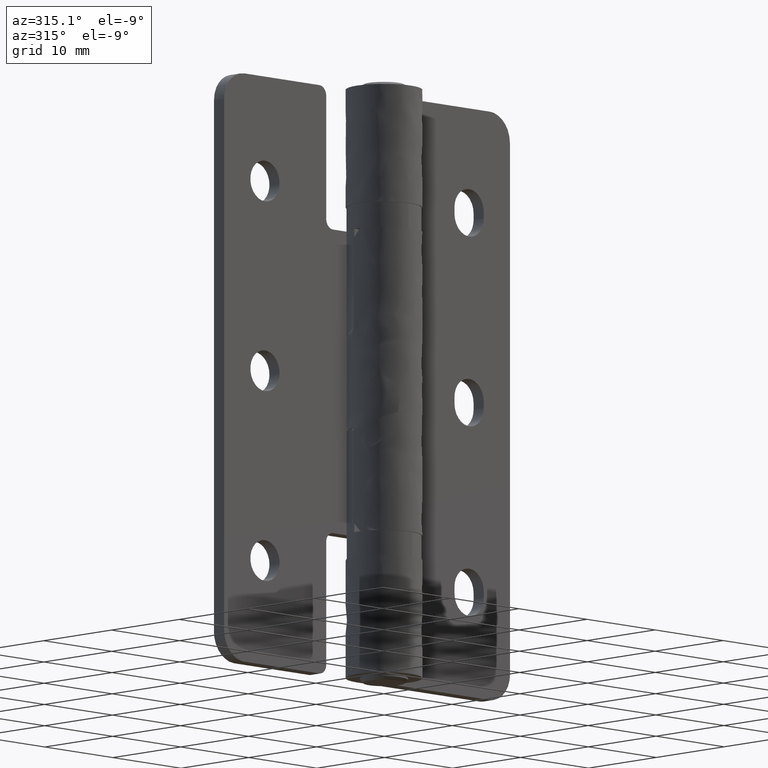
[diagram: clean part render]
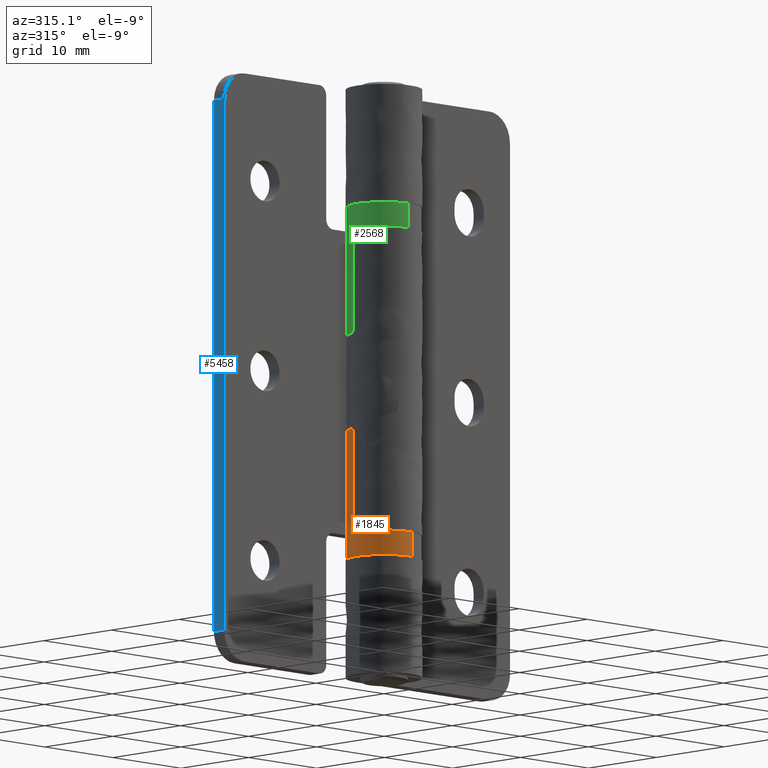
[diagram: same view with three faces highlighted in distinct colors, each labeled with its STEP entity id]
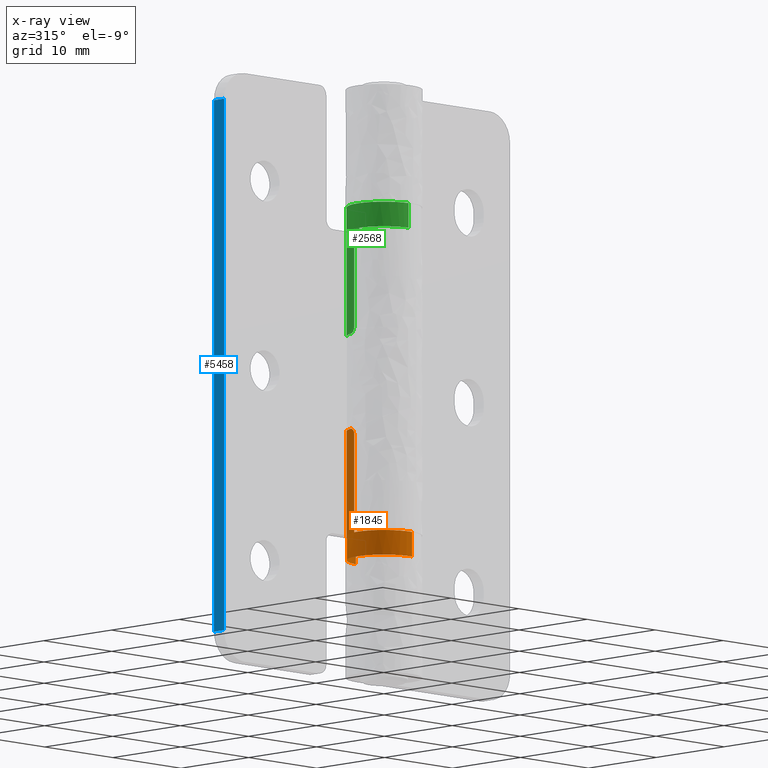
[diagram: x-ray of the same camera — body ghosted, the three highlighted faces saturated]
A machine part, auxiliary view with three faces highlighted in distinct colors.
The next image is the same camera in x-ray (body ghosted, the three faces saturated) — at least one of them is partly hidden behind the body in this view.
Their STEP definitions:

[orange] entity #1845 — the highlighted face is a freeform B-spline surface patch.
#1608=CARTESIAN_POINT('',(0.247033658783090,-3.892168338012674,12.400000000000000));
#1609=VERTEX_POINT('',#1608);
#1623=CARTESIAN_POINT('',(-3.899999999999773,0.0,12.400000000000000));
#1624=VERTEX_POINT('',#1623);
#1625=CARTESIAN_POINT('',(0.247033658783089,-3.892168338012676,12.399999999999999));
#1626=CARTESIAN_POINT('',(0.123640972250947,-3.900000000000000,12.400000000000000));
#1627=CARTESIAN_POINT('',(2.273737E-013,-3.900000000000000,12.400000000000000));
#1628=CARTESIAN_POINT('',(-3.899999999999773,-3.899999999999999,12.400000000000000));
#1629=CARTESIAN_POINT('',(-3.899999999999773,0.0,12.400000000000000));
#1637=(BOUNDED_CURVE()B_SPLINE_CURVE(2,(#1625,#1626,#1627,#1628,#1629),.UNSPECIFIED.,.F.,.U.)B_SPLINE_CURVE_WITH_KNOTS((3,2,3),(0.238936643895539,0.250000000000000,0.500000000000000),.UNSPECIFIED.)CURVE()GEOMETRIC_REPRESENTATION_ITEM()RATIONAL_B_SPLINE_CURVE((0.975224128149886,0.987038472078740,1.0,0.707106781186548,1.0))REPRESENTATION_ITEM(''));
#1638=EDGE_CURVE('',#1609,#1624,#1637,.T.);
#1640=CARTESIAN_POINT('',(-0.247033658779199,3.892168338012893,12.400000000000000));
#1641=VERTEX_POINT('',#1640);
#1642=CARTESIAN_POINT('',(-3.899999999999773,0.0,12.400000000000000));
#1643=CARTESIAN_POINT('',(-3.899999999999772,3.660316690730205,12.400000000000000));
#1644=CARTESIAN_POINT('',(-0.247033658779198,3.892168338012894,12.399999999999995));
#1652=(BOUNDED_CURVE()B_SPLINE_CURVE(2,(#1642,#1643,#1644),.UNSPECIFIED.,.F.,.U.)B_SPLINE_CURVE_WITH_KNOTS((3,3),(0.500000000000000,0.738936643895691),.UNSPECIFIED.)CURVE()GEOMETRIC_REPRESENTATION_ITEM()RATIONAL_B_SPLINE_CURVE((1.0,0.720068309107630,0.975224128150211))REPRESENTATION_ITEM(''));
#1653=EDGE_CURVE('',#1624,#1641,#1652,.T.);
#1697=CARTESIAN_POINT('',(-0.247031587118429,3.892168469498889,14.999999999999931));
#1698=VERTEX_POINT('',#1697);
#1699=CARTESIAN_POINT('',(0.247021727832899,-3.892169095226418,15.0));
#1700=VERTEX_POINT('',#1699);
#1718=CARTESIAN_POINT('',(0.247021727832899,-3.892169095226418,15.0));
#1719=CARTESIAN_POINT('',(0.247033658783090,-3.892168338012674,12.400000000000000));
#1720=QUASI_UNIFORM_CURVE('',1,(#1718,#1719),.UNSPECIFIED.,.F.,.U.);
#1721=EDGE_CURVE('',#1700,#1609,#1720,.T.);
#1725=CARTESIAN_POINT('',(-0.247031587118429,3.892168469498889,14.999999999999931));
#1726=CARTESIAN_POINT('',(-0.247033658779199,3.892168338012893,12.400000000000000));
#1727=QUASI_UNIFORM_CURVE('',1,(#1725,#1726),.UNSPECIFIED.,.F.,.U.);
#1728=EDGE_CURVE('',#1698,#1641,#1727,.T.);
#1733=CARTESIAN_POINT('',(0.247033658760848,-3.892168338014085,26.340000000000000));
#1734=CARTESIAN_POINT('',(-3.645134679253237,-4.139201996774706,26.340000000000011));
#1735=CARTESIAN_POINT('',(-3.892168338013858,-0.247033658760621,26.340000000000000));
#1736=CARTESIAN_POINT('',(-4.139201996774479,3.645134679253463,26.340000000000011));
#1737=CARTESIAN_POINT('',(-0.247033658760394,3.892168338014085,26.340000000000000));
#1738=CARTESIAN_POINT('',(0.247033658760848,-3.892168338014085,12.051500000000001));
#1739=CARTESIAN_POINT('',(-3.645134679253237,-4.139201996774706,12.051499999999999));
#1740=CARTESIAN_POINT('',(-3.892168338013858,-0.247033658760621,12.051500000000001));
#1741=CARTESIAN_POINT('',(-4.139201996774479,3.645134679253463,12.051499999999999));
#1742=CARTESIAN_POINT('',(-0.247033658760394,3.892168338014085,12.051500000000001));
#1750=(BOUNDED_SURFACE()B_SPLINE_SURFACE(2,1,((#1733,#1738),(#1734,#1739),(#1735,#1740),(#1736,#1741),(#1737,#1742)),.UNSPECIFIED.,.F.,.F.,.U.)B_SPLINE_SURFACE_WITH_KNOTS((3,2,3),(2,2),(0.0,6.461731573020280,12.923463146040559),(0.0,14.288500000000010),.UNSPECIFIED.)GEOMETRIC_REPRESENTATION_ITEM()RATIONAL_B_SPLINE_SURFACE(((1.0,1.0),(0.707106781186548,0.707106781186548),(1.0,1.0),(0.707106781186548,0.707106781186548),(1.0,1.0)))REPRESENTATION_ITEM('')SURFACE());
#1751=CARTESIAN_POINT('',(-2.993325909418925,2.500000000000000,14.999999999999680));
#1752=VERTEX_POINT('',#1751);
#1753=CARTESIAN_POINT('',(-2.993325909418925,2.500000000000000,14.999999999999680));
#1754=CARTESIAN_POINT('',(-1.919240356368897,3.786035245950685,14.999999999999840));
#1755=CARTESIAN_POINT('',(-0.247031587118429,3.892168469498889,14.999999999999932));
#1763=(BOUNDED_CURVE()B_SPLINE_CURVE(2,(#1753,#1754,#1755),.UNSPECIFIED.,.F.,.U.)B_SPLINE_CURVE_WITH_KNOTS((3,3),(0.0,0.141269849466149),.UNSPECIFIED.)CURVE()GEOMETRIC_REPRESENTATION_ITEM()RATIONAL_B_SPLINE_CURVE((1.0,0.861797565883015,0.879785828274524))REPRESENTATION_ITEM(''));
#1764=EDGE_CURVE('',#1752,#1698,#1763,.T.);
#1765=ORIENTED_EDGE('',*,*,#1764,.T.);
#1766=ORIENTED_EDGE('',*,*,#1728,.T.);
#1767=ORIENTED_EDGE('',*,*,#1653,.F.);
#1768=ORIENTED_EDGE('',*,*,#1638,.F.);
#1769=ORIENTED_EDGE('',*,*,#1721,.F.);
#1770=CARTESIAN_POINT('',(-3.867815921162515,0.500000000000000,14.999999999999680));
#1771=VERTEX_POINT('',#1770);
#1772=CARTESIAN_POINT('',(0.247021727832899,-3.892169095226418,15.0));
#1773=CARTESIAN_POINT('',(-0.408598927172341,-3.933778938746776,14.999999999999984));
#1774=CARTESIAN_POINT('',(-1.041672105368831,-3.758313348402834,14.999999999999950));
#1775=CARTESIAN_POINT('',(-4.301497939064415,-2.854804427116168,14.999999999999790));
#1776=CARTESIAN_POINT('',(-3.867815921162515,0.500000000000000,14.999999999999680));
#1784=(BOUNDED_CURVE()B_SPLINE_CURVE(2,(#1772,#1773,#1774,#1775,#1776),.UNSPECIFIED.,.F.,.U.)B_SPLINE_CURVE_WITH_KNOTS((3,2,3),(0.689532165748119,0.750000000000000,1.0),.UNSPECIFIED.)CURVE()GEOMETRIC_REPRESENTATION_ITEM()RATIONAL_B_SPLINE_CURVE((0.910305970316265,0.940845113724037,1.0,0.755428290892846,1.0))REPRESENTATION_ITEM(''));
#1785=EDGE_CURVE('',#1700,#1771,#1784,.T.);
#1786=ORIENTED_EDGE('',*,*,#1785,.T.);
#1787=CARTESIAN_POINT('',(-3.867815921162515,0.500000000000000,25.300000000000001));
#1788=VERTEX_POINT('',#1787);
#1789=CARTESIAN_POINT('',(-3.867815921162515,0.500000000000000,25.300000000000001));
#1790=CARTESIAN_POINT('',(-3.867815921162515,0.500000000000000,14.999999999999680));
#1791=QUASI_UNIFORM_CURVE('',1,(#1789,#1790),.UNSPECIFIED.,.F.,.U.);
#1792=EDGE_CURVE('',#1788,#1771,#1791,.T.);
#1793=ORIENTED_EDGE('',*,*,#1792,.F.);
#1794=CARTESIAN_POINT('',(-3.710795063055670,1.200000000000000,26.0));
#1795=VERTEX_POINT('',#1794);
#1796=CARTESIAN_POINT('',(-3.867815921162515,0.500000000000000,25.300000000000001));
#1797=CARTESIAN_POINT('',(-3.867815921162516,0.500000000000000,25.346900686735800));
#1798=CARTESIAN_POINT('',(-3.867220859888334,0.504666035586497,25.393000643184148));
#1799=CARTESIAN_POINT('',(-3.865399063381251,0.518373733388895,25.460997649332910));
#1800=CARTESIAN_POINT('',(-3.864634374000059,0.524069605397087,25.483469665844090));
#1801=CARTESIAN_POINT('',(-3.862752072359972,0.537767815588309,25.528016557649469));
#1802=CARTESIAN_POINT('',(-3.861630748720214,0.545793596394818,25.550105078807981));
#1803=CARTESIAN_POINT('',(-3.857750017946659,0.572796260763245,25.614276542779471));
#1804=CARTESIAN_POINT('',(-3.854464189319228,0.594809359194619,25.654801809496341));
#1805=CARTESIAN_POINT('',(-3.848181650908880,0.633775253334890,25.712219050019741));
#1806=CARTESIAN_POINT('',(-3.845844581156233,0.647848210335236,25.730890837397641));
#1807=CARTESIAN_POINT('',(-3.840714569610177,0.677598288683973,25.766513627450831));
#1808=CARTESIAN_POINT('',(-3.837929500031831,0.693234634280752,25.783440833239140));
#1809=CARTESIAN_POINT('',(-3.828843039903272,0.742340486106126,25.831650702889601));
#1810=CARTESIAN_POINT('',(-3.821817852614273,0.777987345670728,25.860384608697782));
#1811=CARTESIAN_POINT('',(-3.805299789474327,0.855131288640290,25.910893740354648));
#1812=CARTESIAN_POINT('',(-3.796033256611953,0.895536630061500,25.931930064649521));
#1813=CARTESIAN_POINT('',(-3.780508779795831,0.958236375408913,25.957311750530341));
#1814=CARTESIAN_POINT('',(-3.775057615541144,0.979510903838731,25.964751262643230));
#1815=CARTESIAN_POINT('',(-3.763558847872202,1.022803211765114,25.977577287806358));
#1816=CARTESIAN_POINT('',(-3.757492827600857,1.044879574655496,25.982965752767889));
#1817=CARTESIAN_POINT('',(-3.738675746127052,1.111038417581942,25.995775897904728));
#1818=CARTESIAN_POINT('',(-3.725216916468246,1.155402881297082,26.0));
#1819=CARTESIAN_POINT('',(-3.710795063055670,1.200000000000000,26.0));
#1820=B_SPLINE_CURVE_WITH_KNOTS('',3,(#1796,#1797,#1798,#1799,#1800,#1801,#1802,#1803,#1804,#1805,#1806,#1807,#1808,#1809,#1810,#1811,#1812,#1813,#1814,#1815,#1816,#1817,#1818,#1819),.UNSPECIFIED.,.F.,.U.,(4,2,2,2,2,2,2,2,2,2,2,4),(0.0,0.124999999999999,0.187499999999998,0.249999999999998,0.375000000000005,0.437500000000005,0.500000000000004,0.625000000000004,0.750000000000003,0.812500000000003,0.875000000000003,1.0),.UNSPECIFIED.);
#1821=EDGE_CURVE('',#1788,#1795,#1820,.T.);
#1822=ORIENTED_EDGE('',*,*,#1821,.T.);
#1823=CARTESIAN_POINT('',(-2.993325909418925,2.500000000000000,26.0));
#1824=VERTEX_POINT('',#1823);
#1825=CARTESIAN_POINT('',(-3.710795063055668,1.199999999999999,26.0));
#1826=CARTESIAN_POINT('',(-3.478102364578887,1.919562430597327,25.999999999999996));
#1827=CARTESIAN_POINT('',(-2.993325909418926,2.500000000000000,26.0));
#1835=(BOUNDED_CURVE()B_SPLINE_CURVE(2,(#1825,#1826,#1827),.UNSPECIFIED.,.F.,.U.)CURVE()GEOMETRIC_REPRESENTATION_ITEM()QUASI_UNIFORM_CURVE()RATIONAL_B_SPLINE_CURVE((1.0,0.981713455430338,1.0))REPRESENTATION_ITEM(''));
#1836=EDGE_CURVE('',#1795,#1824,#1835,.T.);
#1837=ORIENTED_EDGE('',*,*,#1836,.T.);
#1838=CARTESIAN_POINT('',(-2.993325909418925,2.500000000000000,26.0));
#1839=CARTESIAN_POINT('',(-2.993325909418925,2.500000000000000,14.999999999999680));
#1840=QUASI_UNIFORM_CURVE('',1,(#1838,#1839),.UNSPECIFIED.,.F.,.U.);
#1841=EDGE_CURVE('',#1824,#1752,#1840,.T.);
#1842=ORIENTED_EDGE('',*,*,#1841,.T.);
#1843=EDGE_LOOP('',(#1765,#1766,#1767,#1768,#1769,#1786,#1793,#1822,#1837,#1842));
#1844=FACE_OUTER_BOUND('',#1843,.T.);
#1845=ADVANCED_FACE('',(#1844),#1750,.T.);

[blue] entity #5458 — the highlighted face is a freeform B-spline surface patch.
#5133=CARTESIAN_POINT('',(-20.999999999999648,2.500000000000000,3.0));
#5134=VERTEX_POINT('',#5133);
#5150=CARTESIAN_POINT('',(-20.999999999999648,4.0,3.0));
#5151=VERTEX_POINT('',#5150);
#5152=CARTESIAN_POINT('',(-20.999999999999648,4.0,3.0));
#5153=CARTESIAN_POINT('',(-20.999999999999648,2.500000000000000,3.0));
#5154=QUASI_UNIFORM_CURVE('',1,(#5152,#5153),.UNSPECIFIED.,.F.,.U.);
#5155=EDGE_CURVE('',#5151,#5134,#5154,.T.);
#5196=CARTESIAN_POINT('',(-20.999999999999648,2.500000000000000,59.0));
#5197=VERTEX_POINT('',#5196);
#5218=CARTESIAN_POINT('',(-20.999999999999648,4.0,59.0));
#5219=VERTEX_POINT('',#5218);
#5233=CARTESIAN_POINT('',(-20.999999999999648,2.500000000000000,59.0));
#5234=CARTESIAN_POINT('',(-20.999999999999648,4.0,59.0));
#5235=QUASI_UNIFORM_CURVE('',1,(#5233,#5234),.UNSPECIFIED.,.F.,.U.);
#5236=EDGE_CURVE('',#5197,#5219,#5235,.T.);
#5439=CARTESIAN_POINT('',(-20.999999999999648,2.425075002907291,0.202800108538863));
#5440=CARTESIAN_POINT('',(-20.999999999999648,2.425075002907291,61.797201393498177));
#5441=CARTESIAN_POINT('',(-20.999999999999648,4.074925037325844,0.202800108538863));
#5442=CARTESIAN_POINT('',(-20.999999999999648,4.074925037325844,61.797201393498177));
#5443=B_SPLINE_SURFACE_WITH_KNOTS('',1,1,((#5439,#5441),(#5440,#5442)),.UNSPECIFIED.,.F.,.F.,.U.,(2,2),(2,2),(0.0,61.594401284959311),(0.041708334948495,0.958291687403247),.UNSPECIFIED.);
#5444=CARTESIAN_POINT('',(-20.999999999999648,2.500000000000000,59.0));
#5445=CARTESIAN_POINT('',(-20.999999999999648,2.500000000000000,3.0));
#5446=QUASI_UNIFORM_CURVE('',1,(#5444,#5445),.UNSPECIFIED.,.F.,.U.);
#5447=EDGE_CURVE('',#5197,#5134,#5446,.T.);
#5448=ORIENTED_EDGE('',*,*,#5447,.F.);
#5449=ORIENTED_EDGE('',*,*,#5236,.T.);
#5450=CARTESIAN_POINT('',(-20.999999999999648,4.0,59.0));
#5451=CARTESIAN_POINT('',(-20.999999999999648,4.0,3.0));
#5452=QUASI_UNIFORM_CURVE('',1,(#5450,#5451),.UNSPECIFIED.,.F.,.U.);
#5453=EDGE_CURVE('',#5219,#5151,#5452,.T.);
#5454=ORIENTED_EDGE('',*,*,#5453,.T.);
#5455=ORIENTED_EDGE('',*,*,#5155,.T.);
#5456=EDGE_LOOP('',(#5448,#5449,#5454,#5455));
#5457=FACE_OUTER_BOUND('',#5456,.T.);
#5458=ADVANCED_FACE('',(#5457),#5443,.T.);

[green] entity #2568 — the highlighted face is a freeform B-spline surface patch.
#2373=CARTESIAN_POINT('',(-3.899999999999773,0.0,49.600000000000001));
#2374=VERTEX_POINT('',#2373);
#2375=CARTESIAN_POINT('',(-0.262942886157725,-3.891125934561733,49.600000000000001));
#2376=VERTEX_POINT('',#2375);
#2377=CARTESIAN_POINT('',(-3.899999999999773,0.0,49.600000000000001));
#2378=CARTESIAN_POINT('',(-3.899999999999772,-3.645351752302414,49.600000000000009));
#2379=CARTESIAN_POINT('',(-0.262942886157725,-3.891125934561733,49.599999999999994));
#2387=(BOUNDED_CURVE()B_SPLINE_CURVE(2,(#2377,#2378,#2379),.UNSPECIFIED.,.F.,.U.)B_SPLINE_CURVE_WITH_KNOTS((3,3),(0.0,0.238232421138741),.UNSPECIFIED.)CURVE()GEOMETRIC_REPRESENTATION_ITEM()RATIONAL_B_SPLINE_CURVE((1.0,0.720893357387808,0.973724724578879))REPRESENTATION_ITEM(''));
#2388=EDGE_CURVE('',#2374,#2376,#2387,.T.);
#2407=CARTESIAN_POINT('',(0.262942886158178,3.891125934561733,49.599999999999987));
#2408=VERTEX_POINT('',#2407);
#2422=CARTESIAN_POINT('',(0.262942886158178,3.891125934561734,49.600000000000001));
#2423=CARTESIAN_POINT('',(0.131621188597238,3.900000000000000,49.600000000000009));
#2424=CARTESIAN_POINT('',(2.273737E-013,3.900000000000000,49.600000000000001));
#2425=CARTESIAN_POINT('',(-3.899999999999773,3.899999999999999,49.600000000000001));
#2426=CARTESIAN_POINT('',(-3.899999999999773,0.0,49.600000000000001));
#2434=(BOUNDED_CURVE()B_SPLINE_CURVE(2,(#2422,#2423,#2424,#2425,#2426),.UNSPECIFIED.,.F.,.U.)B_SPLINE_CURVE_WITH_KNOTS((3,2,3),(0.738232421138741,0.750000000000000,1.0),.UNSPECIFIED.)CURVE()GEOMETRIC_REPRESENTATION_ITEM()RATIONAL_B_SPLINE_CURVE((0.973724724578879,0.986213423798739,1.0,0.707106781186548,1.0))REPRESENTATION_ITEM(''));
#2435=EDGE_CURVE('',#2408,#2374,#2434,.T.);
#2446=CARTESIAN_POINT('',(0.262942886034505,3.891125934570090,35.659999999999989));
#2447=CARTESIAN_POINT('',(-3.628183048535585,4.154068820604369,35.659999999999989));
#2448=CARTESIAN_POINT('',(-3.891125934569863,0.262942886034278,35.659999999999989));
#2449=CARTESIAN_POINT('',(-4.154068820604141,-3.628183048535813,35.659999999999989));
#2450=CARTESIAN_POINT('',(-0.262942886034050,-3.891125934570090,35.659999999999989));
#2451=CARTESIAN_POINT('',(0.262942886034505,3.891125934570090,49.948500000000010));
#2452=CARTESIAN_POINT('',(-3.628183048535585,4.154068820604369,49.948500000000017));
#2453=CARTESIAN_POINT('',(-3.891125934569863,0.262942886034278,49.948500000000010));
#2454=CARTESIAN_POINT('',(-4.154068820604141,-3.628183048535813,49.948500000000017));
#2455=CARTESIAN_POINT('',(-0.262942886034050,-3.891125934570090,49.948500000000010));
#2463=(BOUNDED_SURFACE()B_SPLINE_SURFACE(2,1,((#2446,#2451),(#2447,#2452),(#2448,#2453),(#2449,#2454),(#2450,#2455)),.UNSPECIFIED.,.F.,.F.,.U.)B_SPLINE_SURFACE_WITH_KNOTS((3,2,3),(2,2),(0.0,6.461731573020283,12.923463146040570),(0.0,14.288500000000020),.UNSPECIFIED.)GEOMETRIC_REPRESENTATION_ITEM()RATIONAL_B_SPLINE_SURFACE(((1.0,1.0),(0.707106781186548,0.707106781186548),(1.0,1.0),(0.707106781186548,0.707106781186548),(1.0,1.0)))REPRESENTATION_ITEM('')SURFACE());
#2464=CARTESIAN_POINT('',(0.262949045585491,3.891125518328557,47.0));
#2465=VERTEX_POINT('',#2464);
#2466=CARTESIAN_POINT('',(-2.993325909418925,2.500000000000000,47.0));
#2467=VERTEX_POINT('',#2466);
#2468=CARTESIAN_POINT('',(0.262949045585491,3.891125518328557,47.000000000000007));
#2469=CARTESIAN_POINT('',(-1.719577277169625,4.025097913197377,46.999999999999993));
#2470=CARTESIAN_POINT('',(-2.993325909418925,2.500000000000000,47.0));
#2478=(BOUNDED_CURVE()B_SPLINE_CURVE(2,(#2468,#2469,#2470),.UNSPECIFIED.,.F.,.U.)B_SPLINE_CURVE_WITH_KNOTS((3,3),(0.836665489956163,1.0),.UNSPECIFIED.)CURVE()GEOMETRIC_REPRESENTATION_ITEM()RATIONAL_B_SPLINE_CURVE((0.889215156757208,0.840211998889596,1.0))REPRESENTATION_ITEM(''));
#2479=EDGE_CURVE('',#2465,#2467,#2478,.T.);
#2480=ORIENTED_EDGE('',*,*,#2479,.T.);
#2481=CARTESIAN_POINT('',(-2.993325909418925,2.500000000000000,36.0));
#2482=VERTEX_POINT('',#2481);
#2483=CARTESIAN_POINT('',(-2.993325909418925,2.500000000000000,36.0));
#2484=CARTESIAN_POINT('',(-2.993325909418925,2.500000000000000,47.0));
#2485=QUASI_UNIFORM_CURVE('',1,(#2483,#2484),.UNSPECIFIED.,.F.,.U.);
#2486=EDGE_CURVE('',#2482,#2467,#2485,.T.);
#2487=ORIENTED_EDGE('',*,*,#2486,.F.);
#2488=CARTESIAN_POINT('',(-3.710795063055670,1.200000000000000,36.0));
#2489=VERTEX_POINT('',#2488);
#2490=CARTESIAN_POINT('',(-2.993325909418926,2.500000000000000,36.0));
#2491=CARTESIAN_POINT('',(-3.478102364578887,1.919562430597327,36.0));
#2492=CARTESIAN_POINT('',(-3.710795063055667,1.199999999999999,36.0));
#2500=(BOUNDED_CURVE()B_SPLINE_CURVE(2,(#2490,#2491,#2492),.UNSPECIFIED.,.F.,.U.)CURVE()GEOMETRIC_REPRESENTATION_ITEM()QUASI_UNIFORM_CURVE()RATIONAL_B_SPLINE_CURVE((1.0,0.981713455430338,1.0))REPRESENTATION_ITEM(''));
#2501=EDGE_CURVE('',#2482,#2489,#2500,.T.);
#2502=ORIENTED_EDGE('',*,*,#2501,.T.);
#2503=CARTESIAN_POINT('',(-3.867815921162515,0.500000000000000,36.700000000000003));
#2504=VERTEX_POINT('',#2503);
#2505=CARTESIAN_POINT('',(-3.710795063055670,1.200000000000000,36.0));
#2506=CARTESIAN_POINT('',(-3.725218184494353,1.155398960142903,36.000000000000007));
#2507=CARTESIAN_POINT('',(-3.738616614832826,1.111221642267397,36.004225382969153));
#2508=CARTESIAN_POINT('',(-3.757286248761566,1.045617988369962,36.016873237889477));
#2509=CARTESIAN_POINT('',(-3.763271028516553,1.023861510723254,36.022147530987937));
#2510=CARTESIAN_POINT('',(-3.774777656231374,0.980589044008201,36.034892813494530));
#2511=CARTESIAN_POINT('',(-3.780322144619635,0.958975771010902,36.042411700143290));
#2512=CARTESIAN_POINT('',(-3.795964357473360,0.895843056984410,36.067901306528547));
#2513=CARTESIAN_POINT('',(-3.805171582996842,0.855682881356160,36.088834799703363));
#2514=CARTESIAN_POINT('',(-3.821537778311516,0.779341374771390,36.138641379093912));
#2515=CARTESIAN_POINT('',(-3.828742095636257,0.742865108900107,36.167890574601458));
#2516=CARTESIAN_POINT('',(-3.840898554275972,0.677209643078885,36.232236179285771));
#2517=CARTESIAN_POINT('',(-3.845934370913690,0.647679674080950,36.267456605505373));
#2518=CARTESIAN_POINT('',(-3.852259978180807,0.608496587421366,36.324951209115483));
#2519=CARTESIAN_POINT('',(-3.854167165179072,0.596256256077740,36.344989084528272));
#2520=CARTESIAN_POINT('',(-3.857536355810268,0.574055157331038,36.385783017063893));
#2521=CARTESIAN_POINT('',(-3.859009886855569,0.564025642623178,36.406623420918173));
#2522=CARTESIAN_POINT('',(-3.862881660893490,0.537097945890797,36.470448985547300));
#2523=CARTESIAN_POINT('',(-3.864744744780278,0.523293708937332,36.514902105855640));
#2524=CARTESIAN_POINT('',(-3.867220830619740,0.504669491192935,36.606682700946820));
#2525=CARTESIAN_POINT('',(-3.867815921162514,0.500000000000000,36.653084490709070));
#2526=CARTESIAN_POINT('',(-3.867815921162515,0.500000000000000,36.700000000000003));
#2527=B_SPLINE_CURVE_WITH_KNOTS('',3,(#2505,#2506,#2507,#2508,#2509,#2510,#2511,#2512,#2513,#2514,#2515,#2516,#2517,#2518,#2519,#2520,#2521,#2522,#2523,#2524,#2525,#2526),.UNSPECIFIED.,.F.,.U.,(4,2,2,2,2,2,2,2,2,2,4),(0.0,0.125000000000002,0.187500000000001,0.250000000000000,0.375000000000006,0.500000000000012,0.625000000000018,0.687500000000020,0.750000000000023,0.875000000000012,1.0),.UNSPECIFIED.);
#2528=EDGE_CURVE('',#2489,#2504,#2527,.T.);
#2529=ORIENTED_EDGE('',*,*,#2528,.T.);
#2530=CARTESIAN_POINT('',(-3.867815921162515,0.500000000000000,47.0));
#2531=VERTEX_POINT('',#2530);
#2532=CARTESIAN_POINT('',(-3.867815921162515,0.500000000000000,36.700000000000003));
#2533=CARTESIAN_POINT('',(-3.867815921162515,0.500000000000000,47.0));
#2534=QUASI_UNIFORM_CURVE('',1,(#2532,#2533),.UNSPECIFIED.,.F.,.U.);
#2535=EDGE_CURVE('',#2504,#2531,#2534,.T.);
#2536=ORIENTED_EDGE('',*,*,#2535,.T.);
#2537=CARTESIAN_POINT('',(-0.262942885971540,-3.891125934574315,47.0));
#2538=VERTEX_POINT('',#2537);
#2539=CARTESIAN_POINT('',(-3.867815921162515,0.500000000000003,47.0));
#2540=CARTESIAN_POINT('',(-4.301497939064004,-2.854804427122702,47.0));
#2541=CARTESIAN_POINT('',(-1.041672105367861,-3.758313348418146,47.0));
#2542=CARTESIAN_POINT('',(-0.659067797811934,-3.864357788470604,47.0));
#2543=CARTESIAN_POINT('',(-0.262942885971540,-3.891125934574315,46.999999999999986));
#2551=(BOUNDED_CURVE()B_SPLINE_CURVE(2,(#2539,#2540,#2541,#2542,#2543),.UNSPECIFIED.,.F.,.U.)B_SPLINE_CURVE_WITH_KNOTS((3,2,3),(0.0,0.250000000000000,0.287420141311957),.UNSPECIFIED.)CURVE()GEOMETRIC_REPRESENTATION_ITEM()RATIONAL_B_SPLINE_CURVE((1.0,0.755428290892846,1.0,0.963392368337214,0.937743638673768))REPRESENTATION_ITEM(''));
#2552=EDGE_CURVE('',#2531,#2538,#2551,.T.);
#2553=ORIENTED_EDGE('',*,*,#2552,.T.);
#2554=CARTESIAN_POINT('',(-0.262942885971540,-3.891125934574315,47.0));
#2555=CARTESIAN_POINT('',(-0.262942886157725,-3.891125934561733,49.600000000000001));
#2556=QUASI_UNIFORM_CURVE('',1,(#2554,#2555),.UNSPECIFIED.,.F.,.U.);
#2557=EDGE_CURVE('',#2538,#2376,#2556,.T.);
#2558=ORIENTED_EDGE('',*,*,#2557,.T.);
#2559=ORIENTED_EDGE('',*,*,#2388,.F.);
#2560=ORIENTED_EDGE('',*,*,#2435,.F.);
#2561=CARTESIAN_POINT('',(0.262949045585491,3.891125518328557,47.0));
#2562=CARTESIAN_POINT('',(0.262942886158178,3.891125934561733,49.599999999999987));
#2563=QUASI_UNIFORM_CURVE('',1,(#2561,#2562),.UNSPECIFIED.,.F.,.U.);
#2564=EDGE_CURVE('',#2465,#2408,#2563,.T.);
#2565=ORIENTED_EDGE('',*,*,#2564,.F.);
#2566=EDGE_LOOP('',(#2480,#2487,#2502,#2529,#2536,#2553,#2558,#2559,#2560,#2565));
#2567=FACE_OUTER_BOUND('',#2566,.T.);
#2568=ADVANCED_FACE('',(#2567),#2463,.T.);